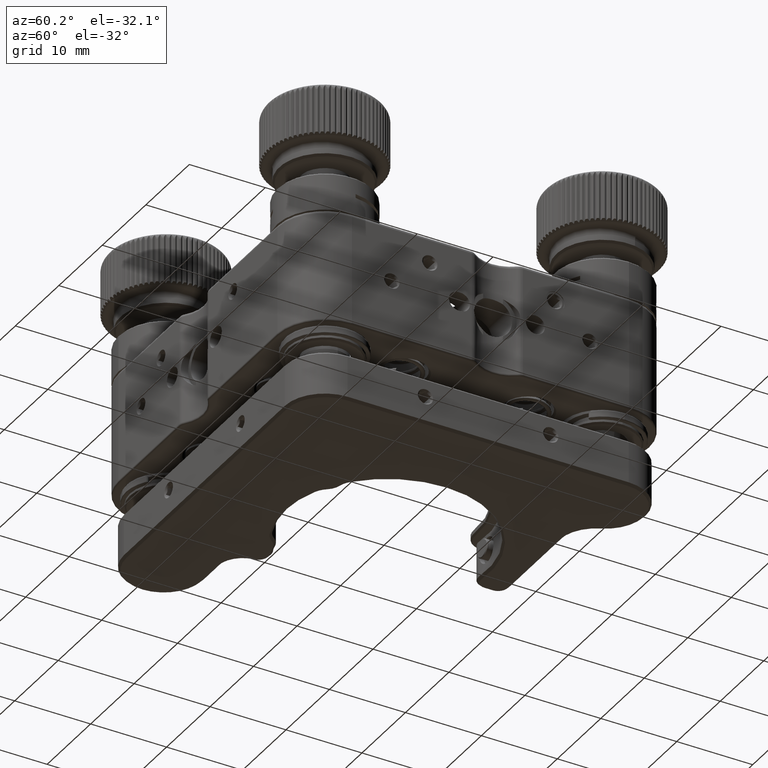
[diagram: clean part render]
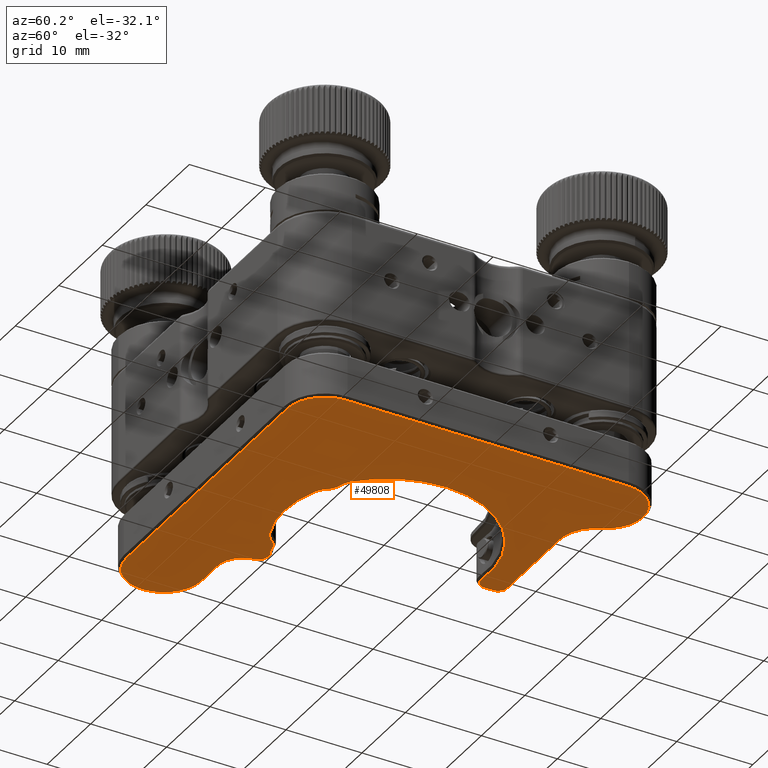
[diagram: same view with one face highlighted and labeled with its STEP entity id]
A machine part, auxiliary view. The second image highlights one B-rep face of the part: STEP entity #49808.
In plain terms, the highlighted planar face has unit normal (-0, 0, -1).
Its self-contained STEP definition (entity closure, byte-faithful):
#325 = CARTESIAN_POINT ( 'NONE',  ( -2.749999999999966693, 16.60000000000001208, -16.99999999999999289 ) ) ;
#734 = CARTESIAN_POINT ( 'NONE',  ( -11.72043363300028673, -10.36666666666665115, -16.99999999999998934 ) ) ;
#1146 = DIRECTION ( 'NONE',  ( 5.530115838942904474E-16, 1.000000000000000000, 4.644569017313068306E-18 ) ) ;
#1401 = CARTESIAN_POINT ( 'NONE',  ( 18.25000000000001421, -18.24999999999999645, -16.99999999999999289 ) ) ;
#1680 = DIRECTION ( 'NONE',  ( -1.000000000000000000, 7.008983741320452446E-16, 0.000000000000000000 ) ) ;
#1721 = EDGE_CURVE ( 'NONE', #24670, #26232, #39586, .T. ) ;
#1785 = CARTESIAN_POINT ( 'NONE',  ( 3.228574091233060717, -8.971417120819031865, -16.99999999999999289 ) ) ;
#1949 = CIRCLE ( 'NONE', #44519, 4.800000000000007816 ) ;
#2042 = VERTEX_POINT ( 'NONE', #43253 ) ;
#2141 = VERTEX_POINT ( 'NONE', #3744 ) ;
#2223 = AXIS2_PLACEMENT_3D ( 'NONE', #25980, #42558, #43624 ) ;
#2710 = CIRCLE ( 'NONE', #10512, 1.199999999999991074 ) ;
#2824 = EDGE_CURVE ( 'NONE', #4312, #3693, #34540, .T. ) ;
#3009 = EDGE_LOOP ( 'NONE', ( #16065, #37700, #26079, #18432, #18510, #27578, #13517, #13884, #33427, #49747, #43701, #20892, #9676, #34930, #5799, #47769, #6648, #26494, #51616, #44061, #6405, #11904, #15866, #44526, #10643 ) ) ;
#3059 = EDGE_CURVE ( 'NONE', #2141, #29538, #22562, .T. ) ;
#3400 = DIRECTION ( 'NONE',  ( -1.000000000000000000, 7.008983741320438641E-16, 0.000000000000000000 ) ) ;
#3693 = VERTEX_POINT ( 'NONE', #50754 ) ;
#3744 = CARTESIAN_POINT ( 'NONE',  ( 23.20000000000000639, -18.25000000000000000, -16.99999999999999645 ) ) ;
#3912 = CARTESIAN_POINT ( 'NONE',  ( 23.20000000000000995, 18.75000000000000000, -16.99999999999999645 ) ) ;
#4051 = CARTESIAN_POINT ( 'NONE',  ( 9.292321729376538997, 22.60000000000000497, -16.99999999999999289 ) ) ;
#4312 = VERTEX_POINT ( 'NONE', #16800 ) ;
#4457 = VERTEX_POINT ( 'NONE', #17612 ) ;
#4463 = AXIS2_PLACEMENT_3D ( 'NONE', #50121, #30280, #29986 ) ;
#4801 = AXIS2_PLACEMENT_3D ( 'NONE', #26161, #42738, #51466 ) ;
#4954 = CARTESIAN_POINT ( 'NONE',  ( -2.749999999999967137, 15.48312380801865018, -16.99999999999999289 ) ) ;
#5003 = EDGE_CURVE ( 'NONE', #40543, #49172, #38658, .T. ) ;
#5617 = DIRECTION ( 'NONE',  ( 1.727824998607864006E-16, -4.644569017313163832E-18, 1.000000000000000000 ) ) ;
#5799 = ORIENTED_EDGE ( 'NONE', *, *, #15035, .T. ) ;
#5856 = AXIS2_PLACEMENT_3D ( 'NONE', #4954, #41408, #33002 ) ;
#6171 = CIRCLE ( 'NONE', #12226, 4.949999999999995737 ) ;
#6234 = DIRECTION ( 'NONE',  ( -1.000000000000000000, 2.513473663435582751E-16, 1.727824998607864006E-16 ) ) ;
#6405 = ORIENTED_EDGE ( 'NONE', *, *, #37371, .T. ) ;
#6648 = ORIENTED_EDGE ( 'NONE', *, *, #28474, .T. ) ;
#6669 = DIRECTION ( 'NONE',  ( 1.727824998607864006E-16, -4.644569017313163832E-18, 1.000000000000000000 ) ) ;
#7017 = CARTESIAN_POINT ( 'NONE',  ( -8.718992033383777596, -9.747241886519278253, -16.99999999999998934 ) ) ;
#7520 = DIRECTION ( 'NONE',  ( -1.727824998607864006E-16, 4.644569017313163832E-18, -1.000000000000000000 ) ) ;
#8075 = VERTEX_POINT ( 'NONE', #34072 ) ;
#8147 = CARTESIAN_POINT ( 'NONE',  ( -18.74999999999997868, -13.29999999999999005, -16.99999999999998934 ) ) ;
#8772 = CARTESIAN_POINT ( 'NONE',  ( -23.69999999999997087, -18.24999999999997513, -16.99999999999998579 ) ) ;
#8800 = CIRCLE ( 'NONE', #4463, 13.50000000000000888 ) ;
#9337 = CARTESIAN_POINT ( 'NONE',  ( -10.52786404500040796, -9.299999999999991829, -16.99999999999998934 ) ) ;
#9676 = ORIENTED_EDGE ( 'NONE', *, *, #32875, .T. ) ;
#9995 = EDGE_CURVE ( 'NONE', #46185, #8075, #2710, .T. ) ;
#10053 = LINE ( 'NONE', #26679, #12558 ) ;
#10419 = DIRECTION ( 'NONE',  ( -1.727824998607864006E-16, 4.644569017313163832E-18, -1.000000000000000000 ) ) ;
#10512 = AXIS2_PLACEMENT_3D ( 'NONE', #26644, #47584, #35598 ) ;
#10569 = LINE ( 'NONE', #26932, #39268 ) ;
#10643 = ORIENTED_EDGE ( 'NONE', *, *, #32626, .T. ) ;
#10951 = CARTESIAN_POINT ( 'NONE',  ( -18.74999999999998224, -18.24999999999998579, -16.99999999999998934 ) ) ;
#11904 = ORIENTED_EDGE ( 'NONE', *, *, #20366, .T. ) ;
#12226 = AXIS2_PLACEMENT_3D ( 'NONE', #15911, #44744, #3400 ) ;
#12310 = AXIS2_PLACEMENT_3D ( 'NONE', #23961, #48989, #15522 ) ;
#12326 = DIRECTION ( 'NONE',  ( 1.000000000000000000, -8.243791451947561032E-16, -1.727824998607864006E-16 ) ) ;
#12558 = VECTOR ( 'NONE', #6234, 1000.000000000000000 ) ;
#13056 = CARTESIAN_POINT ( 'NONE',  ( -10.18062497895480156, -9.299999999999990052, -16.99999999999998934 ) ) ;
#13208 = EDGE_CURVE ( 'NONE', #42432, #27553, #42155, .T. ) ;
#13517 = ORIENTED_EDGE ( 'NONE', *, *, #19227, .T. ) ;
#13599 = AXIS2_PLACEMENT_3D ( 'NONE', #28367, #49830, #32967 ) ;
#13884 = ORIENTED_EDGE ( 'NONE', *, *, #2824, .T. ) ;
#14389 = EDGE_CURVE ( 'NONE', #26232, #21929, #8800, .T. ) ;
#14802 = CARTESIAN_POINT ( 'NONE',  ( 6.842256082151660479, -9.760931983573764015, -16.99999999999999289 ) ) ;
#15035 = EDGE_CURVE ( 'NONE', #34504, #2141, #10569, .T. ) ;
#15042 = DIRECTION ( 'NONE',  ( -1.727824998607864006E-16, 4.644569017313163832E-18, -1.000000000000000000 ) ) ;
#15460 = CARTESIAN_POINT ( 'NONE',  ( -2.749999999999965361, 17.80000000000000426, -16.99999999999999289 ) ) ;
#15522 = DIRECTION ( 'NONE',  ( -1.000000000000000000, 1.325135988593393169E-15, 2.569960705150823426E-16 ) ) ;
#15582 = AXIS2_PLACEMENT_3D ( 'NONE', #1401, #27004, #1680 ) ;
#15669 = VECTOR ( 'NONE', #1146, 1000.000000000000000 ) ;
#15866 = ORIENTED_EDGE ( 'NONE', *, *, #31364, .T. ) ;
#15911 = CARTESIAN_POINT ( 'NONE',  ( 18.25000000000001776, 18.75000000000000355, -16.99999999999999289 ) ) ;
#16065 = ORIENTED_EDGE ( 'NONE', *, *, #36182, .T. ) ;
#16407 = EDGE_CURVE ( 'NONE', #44046, #49779, #50436, .T. ) ;
#16637 = AXIS2_PLACEMENT_3D ( 'NONE', #44790, #7520, #24930 ) ;
#16644 = CIRCLE ( 'NONE', #12310, 13.50000000000001066 ) ;
#16800 = CARTESIAN_POINT ( 'NONE',  ( -2.598979591836704461, 14.29266472164979085, -16.99999999999999289 ) ) ;
#16825 = CARTESIAN_POINT ( 'NONE',  ( 4.308948619780028189, -11.55459169449131451, -16.99999999999999289 ) ) ;
#17401 = CARTESIAN_POINT ( 'NONE',  ( 9.292321729376537220, 17.79999999999999716, -16.99999999999999289 ) ) ;
#17612 = CARTESIAN_POINT ( 'NONE',  ( 13.70225564722195344, 20.70461538461538709, -16.99999999999999289 ) ) ;
#17714 = CARTESIAN_POINT ( 'NONE',  ( -18.74999999999997868, -23.19999999999997087, -16.99999999999998934 ) ) ;
#18432 = ORIENTED_EDGE ( 'NONE', *, *, #40115, .T. ) ;
#18510 = ORIENTED_EDGE ( 'NONE', *, *, #13208, .T. ) ;
#19073 = CARTESIAN_POINT ( 'NONE',  ( 5.490066866390733935, -10.62237151991965689, -16.99999999999999289 ) ) ;
#19227 = EDGE_CURVE ( 'NONE', #2042, #4312, #16644, .T. ) ;
#19254 = CARTESIAN_POINT ( 'NONE',  ( 18.25000000000002132, 23.69999999999999929, -16.99999999999999289 ) ) ;
#19422 = VERTEX_POINT ( 'NONE', #46677 ) ;
#19579 = AXIS2_PLACEMENT_3D ( 'NONE', #10951, #10419, #36254 ) ;
#19585 = DIRECTION ( 'NONE',  ( 1.727824998607864006E-16, -4.644569017313163832E-18, 1.000000000000000000 ) ) ;
#19668 = DIRECTION ( 'NONE',  ( -1.000000000000000000, 7.885106708985509741E-16, 0.000000000000000000 ) ) ;
#20366 = EDGE_CURVE ( 'NONE', #29732, #47639, #49664, .T. ) ;
#20371 = DIRECTION ( 'NONE',  ( 1.727824998607864006E-16, -4.644569017313163832E-18, 1.000000000000000000 ) ) ;
#20643 = CARTESIAN_POINT ( 'NONE',  ( 7.266954046871748396, -11.91954997635585123, -16.99999999999999289 ) ) ;
#20652 = DIRECTION ( 'NONE',  ( -1.000000000000000000, 7.228014483236684722E-16, 0.000000000000000000 ) ) ;
#20892 = ORIENTED_EDGE ( 'NONE', *, *, #21854, .T. ) ;
#21094 = VERTEX_POINT ( 'NONE', #8772 ) ;
#21854 = EDGE_CURVE ( 'NONE', #19422, #4457, #1949, .T. ) ;
#21929 = VERTEX_POINT ( 'NONE', #16825 ) ;
#22236 = DIRECTION ( 'NONE',  ( -1.000000000000000000, 5.256737805990309259E-16, 0.000000000000000000 ) ) ;
#22562 = CIRCLE ( 'NONE', #15582, 4.949999999999985967 ) ;
#22612 = EDGE_CURVE ( 'NONE', #21094, #44046, #52648, .T. ) ;
#22639 = CIRCLE ( 'NONE', #26084, 2.199999999999993516 ) ;
#23300 = DIRECTION ( 'NONE',  ( -1.000000000000000000, -3.097720492815716023E-15, 0.000000000000000000 ) ) ;
#23758 = CARTESIAN_POINT ( 'NONE',  ( -9.066954046871719797, -11.91954997635584412, -16.99999999999998934 ) ) ;
#23961 = CARTESIAN_POINT ( 'NONE',  ( -0.8999999999999807043, 0.9000000000000087930, -16.99999999999999289 ) ) ;
#24161 = CARTESIAN_POINT ( 'NONE',  ( -10.18062497895480156, -9.299999999999990052, -16.99999999999998934 ) ) ;
#24246 = VERTEX_POINT ( 'NONE', #19254 ) ;
#24413 = LINE ( 'NONE', #24161, #48415 ) ;
#24670 = VERTEX_POINT ( 'NONE', #44467 ) ;
#24930 = DIRECTION ( 'NONE',  ( -1.000000000000000000, 0.000000000000000000, 0.000000000000000000 ) ) ;
#25011 = CARTESIAN_POINT ( 'NONE',  ( 18.25000000000001776, 18.75000000000001066, -16.99999999999999289 ) ) ;
#25671 = AXIS2_PLACEMENT_3D ( 'NONE', #25011, #37498, #28587 ) ;
#25803 = CIRCLE ( 'NONE', #13599, 4.949999999999995737 ) ;
#25980 = CARTESIAN_POINT ( 'NONE',  ( -5.028574091233030785, -8.971417120819028312, -16.99999999999998934 ) ) ;
#26079 = ORIENTED_EDGE ( 'NONE', *, *, #14389, .T. ) ;
#26084 = AXIS2_PLACEMENT_3D ( 'NONE', #23758, #15042, #19668 ) ;
#26161 = CARTESIAN_POINT ( 'NONE',  ( -8.276131288944570841, -6.982486135818179562, -16.99999999999998934 ) ) ;
#26232 = VERTEX_POINT ( 'NONE', #44170 ) ;
#26337 = VECTOR ( 'NONE', #12326, 1000.000000000000000 ) ;
#26494 = ORIENTED_EDGE ( 'NONE', *, *, #30695, .T. ) ;
#26644 = CARTESIAN_POINT ( 'NONE',  ( -10.18062497895480156, -10.49999999999998401, -16.99999999999998934 ) ) ;
#26679 = CARTESIAN_POINT ( 'NONE',  ( -18.74999999999997868, -23.19999999999997087, -16.99999999999998934 ) ) ;
#26932 = CARTESIAN_POINT ( 'NONE',  ( 23.20000000000000639, -18.25000000000000000, -16.99999999999999645 ) ) ;
#27004 = DIRECTION ( 'NONE',  ( -1.727824998607864006E-16, 4.644569017313163832E-18, -1.000000000000000000 ) ) ;
#27553 = VERTEX_POINT ( 'NONE', #14802 ) ;
#27578 = ORIENTED_EDGE ( 'NONE', *, *, #32826, .T. ) ;
#27749 = DIRECTION ( 'NONE',  ( -1.727824998607863760E-16, 4.644569017313163062E-18, -1.000000000000000000 ) ) ;
#28366 = EDGE_CURVE ( 'NONE', #49172, #19422, #38607, .T. ) ;
#28367 = CARTESIAN_POINT ( 'NONE',  ( -18.74999999999997513, -18.24999999999997868, -16.99999999999998934 ) ) ;
#28474 = EDGE_CURVE ( 'NONE', #29538, #48276, #10053, .T. ) ;
#28587 = DIRECTION ( 'NONE',  ( -1.000000000000000000, 7.008983741320443571E-16, 0.000000000000000000 ) ) ;
#29086 = DIRECTION ( 'NONE',  ( -1.727824998607864006E-16, 4.644569017313163832E-18, -1.000000000000000000 ) ) ;
#29538 = VERTEX_POINT ( 'NONE', #30503 ) ;
#29732 = VERTEX_POINT ( 'NONE', #734 ) ;
#29764 = CARTESIAN_POINT ( 'NONE',  ( -14.99999999999998934, -13.29999999999999361, -16.99999999999998934 ) ) ;
#29986 = DIRECTION ( 'NONE',  ( -1.000000000000000000, 4.417119961977977887E-16, 2.569960705150823426E-16 ) ) ;
#30280 = DIRECTION ( 'NONE',  ( 1.727824998607864006E-16, -4.644569017313163832E-18, 1.000000000000000000 ) ) ;
#30503 = CARTESIAN_POINT ( 'NONE',  ( 18.25000000000001066, -23.19999999999998153, -16.99999999999999289 ) ) ;
#30695 = EDGE_CURVE ( 'NONE', #48276, #21094, #25803, .T. ) ;
#31211 = CIRCLE ( 'NONE', #38087, 2.800000000000010036 ) ;
#31364 = EDGE_CURVE ( 'NONE', #47639, #46185, #24413, .T. ) ;
#31820 = PLANE ( 'NONE',  #38788 ) ;
#32626 = EDGE_CURVE ( 'NONE', #8075, #40930, #40419, .T. ) ;
#32826 = EDGE_CURVE ( 'NONE', #27553, #2042, #42168, .T. ) ;
#32875 = EDGE_CURVE ( 'NONE', #4457, #24246, #49137, .T. ) ;
#32967 = DIRECTION ( 'NONE',  ( -1.000000000000000000, 7.008983741320438641E-16, 0.000000000000000000 ) ) ;
#33002 = DIRECTION ( 'NONE',  ( -1.000000000000000000, 0.000000000000000000, 0.000000000000000000 ) ) ;
#33287 = DIRECTION ( 'NONE',  ( -1.000000000000000000, 0.000000000000000000, 0.000000000000000000 ) ) ;
#33427 = ORIENTED_EDGE ( 'NONE', *, *, #53438, .T. ) ;
#34001 = DIRECTION ( 'NONE',  ( 1.000000000000000000, -6.102157530988538552E-16, -1.727824998607864006E-16 ) ) ;
#34072 = CARTESIAN_POINT ( 'NONE',  ( -9.609276871951736965, -9.444745840745451204, -16.99999999999998934 ) ) ;
#34504 = VERTEX_POINT ( 'NONE', #3912 ) ;
#34540 = CIRCLE ( 'NONE', #5856, 1.199999999999990630 ) ;
#34930 = ORIENTED_EDGE ( 'NONE', *, *, #41434, .T. ) ;
#35598 = DIRECTION ( 'NONE',  ( -1.000000000000000000, 0.000000000000000000, 0.000000000000000000 ) ) ;
#36182 = EDGE_CURVE ( 'NONE', #40930, #24670, #22639, .T. ) ;
#36254 = DIRECTION ( 'NONE',  ( -1.000000000000000000, 7.008983741320443571E-16, 0.000000000000000000 ) ) ;
#37371 = EDGE_CURVE ( 'NONE', #49779, #29732, #44049, .T. ) ;
#37498 = DIRECTION ( 'NONE',  ( -1.727824998607864006E-16, 4.644569017313163832E-18, -1.000000000000000000 ) ) ;
#37700 = ORIENTED_EDGE ( 'NONE', *, *, #1721, .T. ) ;
#37758 = CARTESIAN_POINT ( 'NONE',  ( 6.301731399780634568, -7.013599992760173762, -16.99999999999999289 ) ) ;
#37788 = CARTESIAN_POINT ( 'NONE',  ( -14.99999999999998934, -13.29999999999999361, -16.99999999999998934 ) ) ;
#38087 = AXIS2_PLACEMENT_3D ( 'NONE', #1785, #6669, #23300 ) ;
#38431 = LINE ( 'NONE', #51519, #15669 ) ;
#38607 = LINE ( 'NONE', #17401, #47343 ) ;
#38658 = CIRCLE ( 'NONE', #48229, 1.199999999999992628 ) ;
#38788 = AXIS2_PLACEMENT_3D ( 'NONE', #48416, #27749, #43264 ) ;
#38992 = CARTESIAN_POINT ( 'NONE',  ( -3.949999999999959766, 16.60000000000001208, -16.99999999999999289 ) ) ;
#39141 = DIRECTION ( 'NONE',  ( -1.575785298042715370E-16, -1.000000000000000000, -4.644569017313136869E-18 ) ) ;
#39268 = VECTOR ( 'NONE', #39141, 1000.000000000000000 ) ;
#39586 = CIRCLE ( 'NONE', #2223, 2.800000000000009148 ) ;
#40115 = EDGE_CURVE ( 'NONE', #21929, #42432, #31211, .T. ) ;
#40419 = CIRCLE ( 'NONE', #4801, 2.800000000000007372 ) ;
#40543 = VERTEX_POINT ( 'NONE', #38992 ) ;
#40791 = DIRECTION ( 'NONE',  ( -1.000000000000000000, -1.239088197126286133E-15, 0.000000000000000000 ) ) ;
#40930 = VERTEX_POINT ( 'NONE', #7017 ) ;
#41408 = DIRECTION ( 'NONE',  ( -1.727824998607864006E-16, 4.644569017313163832E-18, -1.000000000000000000 ) ) ;
#41434 = EDGE_CURVE ( 'NONE', #24246, #34504, #6171, .T. ) ;
#42155 = CIRCLE ( 'NONE', #43015, 2.199999999999989964 ) ;
#42168 = CIRCLE ( 'NONE', #51759, 2.800000000000010481 ) ;
#42432 = VERTEX_POINT ( 'NONE', #19073 ) ;
#42558 = DIRECTION ( 'NONE',  ( 1.727824998607864006E-16, -4.644569017313163832E-18, 1.000000000000000000 ) ) ;
#42738 = DIRECTION ( 'NONE',  ( 1.727824998607864006E-16, -4.644569017313163832E-18, 1.000000000000000000 ) ) ;
#43015 = AXIS2_PLACEMENT_3D ( 'NONE', #20643, #29086, #44863 ) ;
#43181 = CARTESIAN_POINT ( 'NONE',  ( -14.99999999999998757, -9.999999999999980460, -16.99999999999998934 ) ) ;
#43253 = CARTESIAN_POINT ( 'NONE',  ( 8.186296625891456458, -9.084448588996488994, -16.99999999999999289 ) ) ;
#43264 = DIRECTION ( 'NONE',  ( -1.000000000000000000, 4.388850394221320963E-16, 1.727824998607863760E-16 ) ) ;
#43624 = DIRECTION ( 'NONE',  ( -1.000000000000000000, 6.195440985631433624E-16, 0.000000000000000000 ) ) ;
#43701 = ORIENTED_EDGE ( 'NONE', *, *, #28366, .T. ) ;
#44046 = VERTEX_POINT ( 'NONE', #8147 ) ;
#44049 = CIRCLE ( 'NONE', #47510, 3.300000000000009592 ) ;
#44061 = ORIENTED_EDGE ( 'NONE', *, *, #16407, .T. ) ;
#44170 = CARTESIAN_POINT ( 'NONE',  ( -6.108948619780001366, -11.55459169449130918, -16.99999999999998934 ) ) ;
#44467 = CARTESIAN_POINT ( 'NONE',  ( -7.290066866390702671, -10.62237151991965156, -16.99999999999998934 ) ) ;
#44519 = AXIS2_PLACEMENT_3D ( 'NONE', #4051, #19585, #20652 ) ;
#44526 = ORIENTED_EDGE ( 'NONE', *, *, #9995, .T. ) ;
#44744 = DIRECTION ( 'NONE',  ( -1.727824998607864006E-16, 4.644569017313163832E-18, -1.000000000000000000 ) ) ;
#44790 = CARTESIAN_POINT ( 'NONE',  ( -10.52786404500040796, -10.49999999999998401, -16.99999999999998934 ) ) ;
#44863 = DIRECTION ( 'NONE',  ( -1.000000000000000000, 7.885106708985522560E-16, 0.000000000000000000 ) ) ;
#44983 = DIRECTION ( 'NONE',  ( -1.727824998607864006E-16, 4.644569017313163832E-18, -1.000000000000000000 ) ) ;
#46185 = VERTEX_POINT ( 'NONE', #13056 ) ;
#46677 = CARTESIAN_POINT ( 'NONE',  ( 9.292321729376537220, 17.79999999999999716, -16.99999999999999289 ) ) ;
#47343 = VECTOR ( 'NONE', #34001, 1000.000000000000000 ) ;
#47510 = AXIS2_PLACEMENT_3D ( 'NONE', #43181, #5617, #22236 ) ;
#47584 = DIRECTION ( 'NONE',  ( -1.727824998607864006E-16, 4.644569017313163832E-18, -1.000000000000000000 ) ) ;
#47639 = VERTEX_POINT ( 'NONE', #9337 ) ;
#47769 = ORIENTED_EDGE ( 'NONE', *, *, #3059, .T. ) ;
#48229 = AXIS2_PLACEMENT_3D ( 'NONE', #325, #44983, #33287 ) ;
#48276 = VERTEX_POINT ( 'NONE', #17714 ) ;
#48415 = VECTOR ( 'NONE', #53011, 1000.000000000000000 ) ;
#48416 = CARTESIAN_POINT ( 'NONE',  ( 18.25000000000001776, 18.75000000000000355, -16.99999999999999289 ) ) ;
#48989 = DIRECTION ( 'NONE',  ( 1.727824998607864006E-16, -4.644569017313163832E-18, 1.000000000000000000 ) ) ;
#49137 = CIRCLE ( 'NONE', #25671, 4.949999999999992184 ) ;
#49172 = VERTEX_POINT ( 'NONE', #15460 ) ;
#49664 = CIRCLE ( 'NONE', #16637, 1.199999999999991074 ) ;
#49747 = ORIENTED_EDGE ( 'NONE', *, *, #5003, .T. ) ;
#49779 = VERTEX_POINT ( 'NONE', #37788 ) ;
#49808 = ADVANCED_FACE ( 'NONE', ( #51983 ), #31820, .T. ) ;
#49830 = DIRECTION ( 'NONE',  ( -1.727824998607864006E-16, 4.644569017313163832E-18, -1.000000000000000000 ) ) ;
#50121 = CARTESIAN_POINT ( 'NONE',  ( -0.8999999999999807043, 0.9000000000000087930, -16.99999999999999289 ) ) ;
#50436 = LINE ( 'NONE', #29764, #26337 ) ;
#50754 = CARTESIAN_POINT ( 'NONE',  ( -3.949999999999957989, 15.48312380801865018, -16.99999999999999289 ) ) ;
#51466 = DIRECTION ( 'NONE',  ( -1.000000000000000000, 3.097720492815718784E-16, 0.000000000000000000 ) ) ;
#51519 = CARTESIAN_POINT ( 'NONE',  ( -3.949999999999957101, 16.60000000000001208, -16.99999999999999289 ) ) ;
#51616 = ORIENTED_EDGE ( 'NONE', *, *, #22612, .T. ) ;
#51759 = AXIS2_PLACEMENT_3D ( 'NONE', #37758, #20371, #40791 ) ;
#51983 = FACE_OUTER_BOUND ( 'NONE', #3009, .T. ) ;
#52648 = CIRCLE ( 'NONE', #19579, 4.949999999999992184 ) ;
#53011 = DIRECTION ( 'NONE',  ( 1.000000000000000000, -4.388850394221321456E-16, -1.727824998607864006E-16 ) ) ;
#53438 = EDGE_CURVE ( 'NONE', #3693, #40543, #38431, .T. ) ;